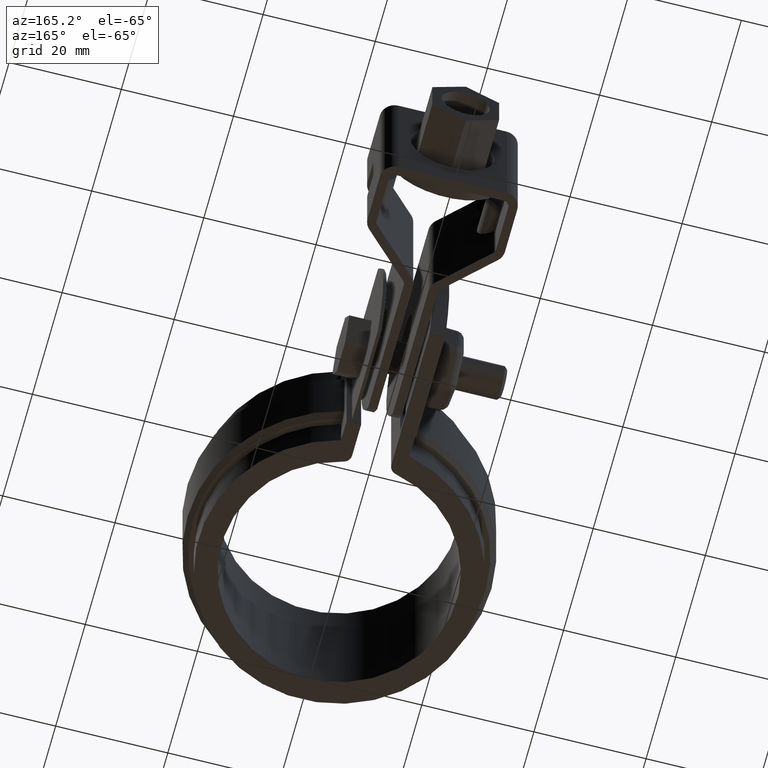
[diagram: clean part render]
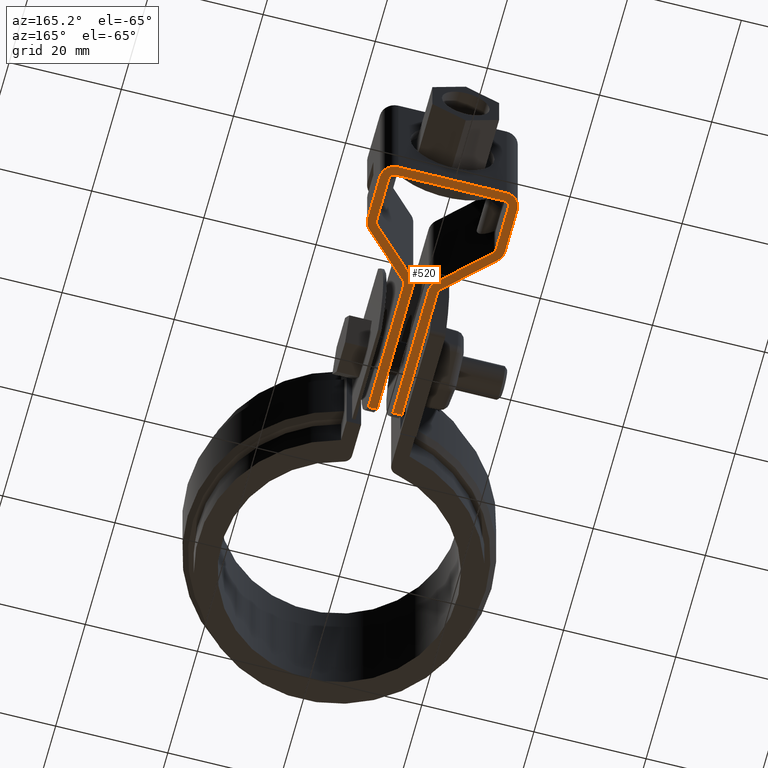
[diagram: same view with one face highlighted and labeled with its STEP entity id]
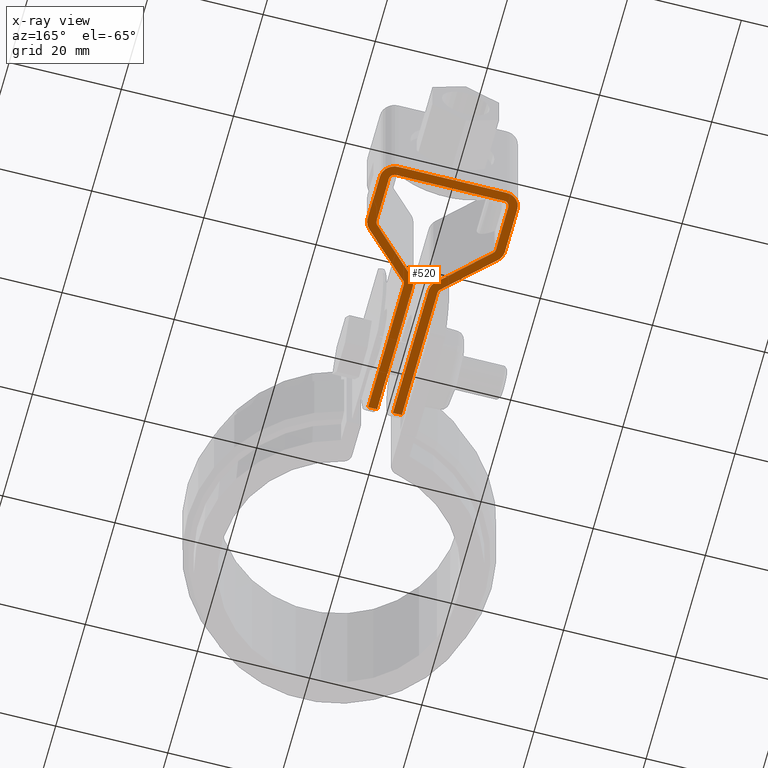
[diagram: x-ray of the same camera — body ghosted, the highlighted face saturated]
A machine part, auxiliary view. The second image highlights one B-rep face of the part: STEP entity #520.
The next image is the same camera in x-ray: the body ghosted, the highlighted face saturated — about 0% of this face is hidden behind the body in this view.
In plain terms, the highlighted planar face has unit normal (0, 0, -1).
Its self-contained STEP definition (entity closure, byte-faithful):
#520 = ADVANCED_FACE( '', ( #1024 ), #1025, .T. );
#1024 = FACE_OUTER_BOUND( '', #2117, .T. );
#1025 = PLANE( '', #2118 );
#2117 = EDGE_LOOP( '', ( #4677, #4678, #4679, #4680, #4681, #4682, #4683, #4684, #4685, #4686, #4687, #4688, #4689, #4690, #4691, #4692, #4693, #4694, #4695, #4696, #4697, #4698, #4699, #4700, #4701, #4702, #4703, #4704 ) );
#2118 = AXIS2_PLACEMENT_3D( '', #4705, #4706, #4707 );
#4677 = ORIENTED_EDGE( '', *, *, #6585, .T. );
#4678 = ORIENTED_EDGE( '', *, *, #6550, .T. );
#4679 = ORIENTED_EDGE( '', *, *, #6559, .F. );
#4680 = ORIENTED_EDGE( '', *, *, #6553, .F. );
#4681 = ORIENTED_EDGE( '', *, *, #6558, .F. );
#4682 = ORIENTED_EDGE( '', *, *, #6547, .T. );
#4683 = ORIENTED_EDGE( '', *, *, #6594, .T. );
#4684 = ORIENTED_EDGE( '', *, *, #6595, .T. );
#4685 = ORIENTED_EDGE( '', *, *, #6596, .T. );
#4686 = ORIENTED_EDGE( '', *, *, #6502, .T. );
#4687 = ORIENTED_EDGE( '', *, *, #6593, .T. );
#4688 = ORIENTED_EDGE( '', *, *, #6545, .F. );
#4689 = ORIENTED_EDGE( '', *, *, #6532, .F. );
#4690 = ORIENTED_EDGE( '', *, *, #6597, .F. );
#4691 = ORIENTED_EDGE( '', *, *, #6598, .F. );
#4692 = ORIENTED_EDGE( '', *, *, #6599, .F. );
#4693 = ORIENTED_EDGE( '', *, *, #6509, .T. );
#4694 = ORIENTED_EDGE( '', *, *, #6505, .T. );
#4695 = ORIENTED_EDGE( '', *, *, #6600, .T. );
#4696 = ORIENTED_EDGE( '', *, *, #6601, .F. );
#4697 = ORIENTED_EDGE( '', *, *, #6538, .F. );
#4698 = ORIENTED_EDGE( '', *, *, #6535, .F. );
#4699 = ORIENTED_EDGE( '', *, *, #6542, .F. );
#4700 = ORIENTED_EDGE( '', *, *, #6543, .F. );
#4701 = ORIENTED_EDGE( '', *, *, #6592, .T. );
#4702 = ORIENTED_EDGE( '', *, *, #6590, .T. );
#4703 = ORIENTED_EDGE( '', *, *, #6587, .T. );
#4704 = ORIENTED_EDGE( '', *, *, #6583, .T. );
#4705 = CARTESIAN_POINT( '', ( -9.64999999999950, 73.8025110200059, -25.0000000000244 ) );
#4706 = DIRECTION( '', ( 5.79906149265214E-015, 1.26121335597421E-013, -1.00000000000000 ) );
#4707 = DIRECTION( '', ( -9.21184560650170E-016, 1.00000000000000, 1.26121335597421E-013 ) );
#6502 = EDGE_CURVE( '', #7689, #7690, #7691, .T. );
#6505 = EDGE_CURVE( '', #7694, #7695, #7696, .T. );
#6509 = EDGE_CURVE( '', #7701, #7694, #7702, .T. );
#6532 = EDGE_CURVE( '', #7738, #7740, #7741, .T. );
#6535 = EDGE_CURVE( '', #7743, #7745, #7746, .T. );
#6538 = EDGE_CURVE( '', #7745, #7749, #7750, .T. );
#6542 = EDGE_CURVE( '', #7753, #7743, #7755, .T. );
#6543 = EDGE_CURVE( '', #7756, #7753, #7757, .T. );
#6545 = EDGE_CURVE( '', #7740, #7759, #7760, .T. );
#6547 = EDGE_CURVE( '', #7762, #7763, #7764, .F. );
#6550 = EDGE_CURVE( '', #7767, #7768, #7769, .T. );
#6553 = EDGE_CURVE( '', #7772, #7773, #7774, .T. );
#6558 = EDGE_CURVE( '', #7762, #7772, #7781, .T. );
#6559 = EDGE_CURVE( '', #7773, #7768, #7782, .T. );
#6583 = EDGE_CURVE( '', #7823, #7821, #7824, .T. );
#6585 = EDGE_CURVE( '', #7821, #7767, #7826, .T. );
#6587 = EDGE_CURVE( '', #7828, #7823, #7829, .T. );
#6590 = EDGE_CURVE( '', #7832, #7828, #7833, .T. );
#6592 = EDGE_CURVE( '', #7756, #7832, #7835, .T. );
#6593 = EDGE_CURVE( '', #7690, #7759, #7836, .T. );
#6594 = EDGE_CURVE( '', #7763, #7837, #7838, .T. );
#6595 = EDGE_CURVE( '', #7837, #7839, #7840, .T. );
#6596 = EDGE_CURVE( '', #7839, #7689, #7841, .T. );
#6597 = EDGE_CURVE( '', #7842, #7738, #7843, .T. );
#6598 = EDGE_CURVE( '', #7844, #7842, #7845, .T. );
#6599 = EDGE_CURVE( '', #7701, #7844, #7846, .F. );
#6600 = EDGE_CURVE( '', #7695, #7847, #7848, .T. );
#6601 = EDGE_CURVE( '', #7749, #7847, #7849, .T. );
#7689 = VERTEX_POINT( '', #11045 );
#7690 = VERTEX_POINT( '', #11046 );
#7691 = CIRCLE( '', #11047, 2.59999999999999 );
#7694 = VERTEX_POINT( '', #11052 );
#7695 = VERTEX_POINT( '', #11053 );
#7696 = LINE( '', #11054, #11055 );
#7701 = VERTEX_POINT( '', #11060 );
#7702 = LINE( '', #11061, #11062 );
#7738 = VERTEX_POINT( '', #11135 );
#7740 = VERTEX_POINT( '', #11138 );
#7741 = LINE( '', #11139, #11140 );
#7743 = VERTEX_POINT( '', #11143 );
#7745 = VERTEX_POINT( '', #11146 );
#7746 = CIRCLE( '', #11147, 0.999999999999999 );
#7749 = VERTEX_POINT( '', #11152 );
#7750 = LINE( '', #11153, #11154 );
#7753 = VERTEX_POINT( '', #11159 );
#7755 = LINE( '', #11162, #11163 );
#7756 = VERTEX_POINT( '', #11164 );
#7757 = CIRCLE( '', #11165, 1.00000000000000 );
#7759 = VERTEX_POINT( '', #11168 );
#7760 = CIRCLE( '', #11169, 2.59999999999999 );
#7762 = VERTEX_POINT( '', #11172 );
#7763 = VERTEX_POINT( '', #11173 );
#7764 = CIRCLE( '', #11174, 1.00000000000000 );
#7767 = VERTEX_POINT( '', #11179 );
#7768 = VERTEX_POINT( '', #11180 );
#7769 = CIRCLE( '', #11181, 2.60000000000000 );
#7772 = VERTEX_POINT( '', #11186 );
#7773 = VERTEX_POINT( '', #11187 );
#7774 = LINE( '', #11188, #11189 );
#7781 = LINE( '', #11196, #11197 );
#7782 = LINE( '', #11198, #11199 );
#7821 = VERTEX_POINT( '', #11274 );
#7823 = VERTEX_POINT( '', #11277 );
#7824 = CIRCLE( '', #11278, 1.00000000000000 );
#7826 = LINE( '', #11281, #11282 );
#7828 = VERTEX_POINT( '', #11285 );
#7829 = LINE( '', #11286, #11287 );
#7832 = VERTEX_POINT( '', #11292 );
#7833 = CIRCLE( '', #11293, 1.00000000000000 );
#7835 = LINE( '', #11296, #11297 );
#7836 = LINE( '', #11298, #11299 );
#7837 = VERTEX_POINT( '', #11300 );
#7838 = LINE( '', #11301, #11302 );
#7839 = VERTEX_POINT( '', #11303 );
#7840 = CIRCLE( '', #11304, 2.59999999999999 );
#7841 = LINE( '', #11305, #11306 );
#7842 = VERTEX_POINT( '', #11307 );
#7843 = CIRCLE( '', #11308, 2.59999999999999 );
#7844 = VERTEX_POINT( '', #11309 );
#7845 = LINE( '', #11310, #11311 );
#7846 = CIRCLE( '', #11312, 0.999999999999998 );
#7847 = VERTEX_POINT( '', #11313 );
#7848 = LINE( '', #11314, #11315 );
#7849 = CIRCLE( '', #11316, 2.59999999999999 );
#11045 = CARTESIAN_POINT( '', ( -12.2499999999995, 73.8025110200059, -25.0000000000245 ) );
#11046 = CARTESIAN_POINT( '', ( -9.64999999999951, 76.4025110200058, -25.0000000000241 ) );
#11047 = AXIS2_PLACEMENT_3D( '', #12927, #12928, #12929 );
#11052 = CARTESIAN_POINT( '', ( 3.00000000000053, 30.9025110530944, -25.0000000000297 ) );
#11053 = CARTESIAN_POINT( '', ( 1.40000000000054, 30.9025110530944, -25.0000000000298 ) );
#11054 = CARTESIAN_POINT( '', ( 38.4737108565964, 30.9025110579858, -25.0000000059428 ) );
#11055 = VECTOR( '', #12932, 999.999999999998 );
#11060 = CARTESIAN_POINT( '', ( 3.00000000000051, 54.9566574245265, -25.0000000000267 ) );
#11061 = CARTESIAN_POINT( '', ( 3.00000000000051, 55.3781211934166, -25.0000000000267 ) );
#11062 = VECTOR( '', #12942, 1000.00000000000 );
#11135 = CARTESIAN_POINT( '', ( 12.2500000000005, 65.4983168191203, -25.0000000000253 ) );
#11138 = CARTESIAN_POINT( '', ( 12.2500000000005, 73.8025110200062, -25.0000000000243 ) );
#11139 = CARTESIAN_POINT( '', ( 12.2500000000005, 65.4983168191203, -25.0000000000253 ) );
#11140 = VECTOR( '', #12973, 1000.00000000000 );
#11143 = CARTESIAN_POINT( '', ( 10.6500000000005, 65.4983167888962, -25.0000000000253 ) );
#11146 = CARTESIAN_POINT( '', ( 10.3483238355310, 64.7825348243777, -25.0000000000254 ) );
#11147 = AXIS2_PLACEMENT_3D( '', #12976, #12977, #12978 );
#11152 = CARTESIAN_POINT( '', ( 2.18435802762122, 56.8176905020505, -25.0000000000265 ) );
#11153 = CARTESIAN_POINT( '', ( 10.3483238355310, 64.7825348243777, -25.0000000000254 ) );
#11154 = VECTOR( '', #12981, 1000.00000000000 );
#11159 = CARTESIAN_POINT( '', ( 10.6500000000005, 73.8025110200062, -25.0000000000243 ) );
#11162 = CARTESIAN_POINT( '', ( 10.6500000000005, 73.8025110200062, -25.0000000000243 ) );
#11163 = VECTOR( '', #12985, 1000.00000000000 );
#11164 = CARTESIAN_POINT( '', ( 9.65000000000049, 74.8025110200062, -25.0000000000242 ) );
#11165 = AXIS2_PLACEMENT_3D( '', #12986, #12987, #12988 );
#11168 = CARTESIAN_POINT( '', ( 9.65000000000049, 76.4025110200062, -25.0000000000240 ) );
#11169 = AXIS2_PLACEMENT_3D( '', #12990, #12991, #12992 );
#11172 = CARTESIAN_POINT( '', ( -2.99999999999948, 54.9566574245262, -25.0000000000268 ) );
#11173 = CARTESIAN_POINT( '', ( -3.30167616446897, 55.6724393890447, -25.0000000000267 ) );
#11174 = AXIS2_PLACEMENT_3D( '', #12994, #12995, #12996 );
#11179 = CARTESIAN_POINT( '', ( -2.18435802762019, 56.8176905020502, -25.0000000000266 ) );
#11180 = CARTESIAN_POINT( '', ( -1.39999999999948, 54.9566573943021, -25.0000000000268 ) );
#11181 = AXIS2_PLACEMENT_3D( '', #12999, #13000, #13001 );
#11186 = CARTESIAN_POINT( '', ( -2.99999999999945, 30.9025110530941, -25.0000000000298 ) );
#11187 = CARTESIAN_POINT( '', ( -1.39999999999946, 30.9025110530941, -25.0000000000298 ) );
#11188 = CARTESIAN_POINT( '', ( -38.4737108565954, 30.9025110579855, -25.0000000059433 ) );
#11189 = VECTOR( '', #13004, 1000.00000000000 );
#11196 = CARTESIAN_POINT( '', ( -2.99999999999948, 55.3781211934163, -25.0000000000267 ) );
#11197 = VECTOR( '', #13017, 1000.00000000000 );
#11198 = CARTESIAN_POINT( '', ( -1.39999999999945, 26.4025110200060, -25.0000000000304 ) );
#11199 = VECTOR( '', #13018, 1000.00000000000 );
#11274 = CARTESIAN_POINT( '', ( -10.3483238355300, 64.7825348243774, -25.0000000000256 ) );
#11277 = CARTESIAN_POINT( '', ( -10.6499999999995, 65.4983167888959, -25.0000000000255 ) );
#11278 = AXIS2_PLACEMENT_3D( '', #13054, #13055, #13056 );
#11281 = CARTESIAN_POINT( '', ( -10.3483238355300, 64.7825348243774, -25.0000000000256 ) );
#11282 = VECTOR( '', #13058, 1000.00000000000 );
#11285 = CARTESIAN_POINT( '', ( -10.6499999999995, 73.8025110200059, -25.0000000000245 ) );
#11286 = CARTESIAN_POINT( '', ( -10.6499999999995, 73.8025110200059, -25.0000000000245 ) );
#11287 = VECTOR( '', #13060, 1000.00000000000 );
#11292 = CARTESIAN_POINT( '', ( -9.64999999999950, 74.8025110200059, -25.0000000000243 ) );
#11293 = AXIS2_PLACEMENT_3D( '', #13063, #13064, #13065 );
#11296 = CARTESIAN_POINT( '', ( 9.65000000000051, 74.8025110200059, -25.0000000000242 ) );
#11297 = VECTOR( '', #13067, 1000.00000000000 );
#11298 = CARTESIAN_POINT( '', ( -9.64999999999951, 76.4025110200058, -25.0000000000241 ) );
#11299 = VECTOR( '', #13068, 1000.00000000000 );
#11300 = CARTESIAN_POINT( '', ( -11.4656419723788, 63.6372837113719, -25.0000000000257 ) );
#11301 = CARTESIAN_POINT( '', ( -3.90167616446898, 56.2578052156343, -25.0000000000266 ) );
#11302 = VECTOR( '', #13069, 1000.00000000000 );
#11303 = CARTESIAN_POINT( '', ( -12.2499999999995, 65.4983168191200, -25.0000000000255 ) );
#11304 = AXIS2_PLACEMENT_3D( '', #13070, #13071, #13072 );
#11305 = CARTESIAN_POINT( '', ( -12.2499999999995, 65.4983168191200, -25.0000000000255 ) );
#11306 = VECTOR( '', #13073, 1000.00000000000 );
#11307 = CARTESIAN_POINT( '', ( 11.4656419723798, 63.6372837113722, -25.0000000000256 ) );
#11308 = AXIS2_PLACEMENT_3D( '', #13074, #13075, #13076 );
#11309 = CARTESIAN_POINT( '', ( 3.30167616447000, 55.6724393890450, -25.0000000000266 ) );
#11310 = CARTESIAN_POINT( '', ( 3.90167616447001, 56.2578052156346, -25.0000000000265 ) );
#11311 = VECTOR( '', #13077, 1000.00000000000 );
#11312 = AXIS2_PLACEMENT_3D( '', #13078, #13079, #13080 );
#11313 = CARTESIAN_POINT( '', ( 1.40000000000052, 54.9566573943024, -25.0000000000267 ) );
#11314 = CARTESIAN_POINT( '', ( 1.40000000000054, 26.4025110200062, -25.0000000000303 ) );
#11315 = VECTOR( '', #13081, 1000.00000000000 );
#11316 = AXIS2_PLACEMENT_3D( '', #13082, #13083, #13084 );
#12927 = CARTESIAN_POINT( '', ( -9.64999999999950, 73.8025110200059, -25.0000000000244 ) );
#12928 = DIRECTION( '', ( 5.79906149265214E-015, 1.26121335597421E-013, -1.00000000000000 ) );
#12929 = DIRECTION( '', ( -1.00000000000000, -9.21184560649439E-016, -5.79906149265226E-015 ) );
#12932 = DIRECTION( '', ( -1.00000000000000, -7.98723925267201E-016, -5.79906149265224E-015 ) );
#12942 = DIRECTION( '', ( 6.87701622805418E-016, -1.00000000000000, -1.26121335597421E-013 ) );
#12973 = DIRECTION( '', ( -7.98723925267933E-016, 1.00000000000000, 1.26121335597421E-013 ) );
#12976 = CARTESIAN_POINT( '', ( 9.65000000000049, 65.4983167888962, -25.0000000000253 ) );
#12977 = DIRECTION( '', ( 5.79906149265214E-015, 1.26121335597421E-013, -1.00000000000000 ) );
#12978 = DIRECTION( '', ( 1.00000000000000, 7.98723925267201E-016, 5.79906149265224E-015 ) );
#12981 = DIRECTION( '', ( -0.715781964518503, -0.698323835530503, -9.22243984441952E-014 ) );
#12985 = DIRECTION( '', ( 7.98723925267933E-016, -1.00000000000000, -1.26121335597421E-013 ) );
#12986 = CARTESIAN_POINT( '', ( 9.65000000000049, 73.8025110200062, -25.0000000000243 ) );
#12987 = DIRECTION( '', ( 5.79906149265214E-015, 1.26121335597421E-013, -1.00000000000000 ) );
#12988 = DIRECTION( '', ( -7.98723925267933E-016, 1.00000000000000, 1.26121335597421E-013 ) );
#12990 = CARTESIAN_POINT( '', ( 9.65000000000049, 73.8025110200062, -25.0000000000243 ) );
#12991 = DIRECTION( '', ( -5.79906149265214E-015, -1.26121335597421E-013, 1.00000000000000 ) );
#12992 = DIRECTION( '', ( 1.00000000000000, 7.98723925267201E-016, 5.79906149265224E-015 ) );
#12994 = CARTESIAN_POINT( '', ( -3.99999999999948, 54.9566574245262, -25.0000000000268 ) );
#12995 = DIRECTION( '', ( 5.79906149265214E-015, 1.26121335597421E-013, -1.00000000000000 ) );
#12996 = DIRECTION( '', ( -1.00000000000000, -9.21184560649439E-016, -5.79906149265226E-015 ) );
#12999 = CARTESIAN_POINT( '', ( -3.99999999999948, 54.9566573943021, -25.0000000000268 ) );
#13000 = DIRECTION( '', ( 5.79906149265214E-015, 1.26121335597421E-013, -1.00000000000000 ) );
#13001 = DIRECTION( '', ( -1.00000000000000, -9.21184560649439E-016, -5.79906149265226E-015 ) );
#13004 = DIRECTION( '', ( 1.00000000000000, 9.21184560649439E-016, 5.79906149265226E-015 ) );
#13017 = DIRECTION( '', ( 1.03220686311269E-015, -1.00000000000000, -1.26121335597421E-013 ) );
#13018 = DIRECTION( '', ( -1.03220686311269E-015, 1.00000000000000, 1.26121335597421E-013 ) );
#13054 = CARTESIAN_POINT( '', ( -9.64999999999950, 65.4983167888959, -25.0000000000255 ) );
#13055 = DIRECTION( '', ( -5.79906149265214E-015, -1.26121335597421E-013, 1.00000000000000 ) );
#13056 = DIRECTION( '', ( -1.00000000000000, -9.21184560649439E-016, -5.79906149265226E-015 ) );
#13058 = DIRECTION( '', ( 0.715781964518506, -0.698323835530500, -8.39226711890465E-014 ) );
#13060 = DIRECTION( '', ( 9.21184560650170E-016, -1.00000000000000, -1.26121335597421E-013 ) );
#13063 = CARTESIAN_POINT( '', ( -9.64999999999950, 73.8025110200059, -25.0000000000244 ) );
#13064 = DIRECTION( '', ( -5.79906149265214E-015, -1.26121335597421E-013, 1.00000000000000 ) );
#13065 = DIRECTION( '', ( -9.21184560650170E-016, 1.00000000000000, 1.26121335597421E-013 ) );
#13067 = DIRECTION( '', ( -1.00000000000000, -9.21184560649439E-016, -5.79906149265226E-015 ) );
#13068 = DIRECTION( '', ( 1.00000000000000, 9.21184560649439E-016, 5.79906149265226E-015 ) );
#13069 = DIRECTION( '', ( -0.715781964518506, 0.698323835530500, 8.39226711890465E-014 ) );
#13070 = CARTESIAN_POINT( '', ( -9.64999999999950, 65.4983168191200, -25.0000000000255 ) );
#13071 = DIRECTION( '', ( 5.79906149265215E-015, 1.26121335597421E-013, -1.00000000000000 ) );
#13072 = DIRECTION( '', ( -0.698323835530501, -0.715781964518505, -9.43250002256460E-014 ) );
#13073 = DIRECTION( '', ( -9.21184560650170E-016, 1.00000000000000, 1.26121335597421E-013 ) );
#13074 = CARTESIAN_POINT( '', ( 9.65000000000049, 65.4983168191203, -25.0000000000253 ) );
#13075 = DIRECTION( '', ( -5.79906149265214E-015, -1.26121335597421E-013, 1.00000000000000 ) );
#13076 = DIRECTION( '', ( 0.698323835530501, -0.715781964518505, -8.62257544975938E-014 ) );
#13077 = DIRECTION( '', ( 0.715781964518503, 0.698323835530503, 9.22243984441952E-014 ) );
#13078 = CARTESIAN_POINT( '', ( 4.00000000000051, 54.9566574245265, -25.0000000000267 ) );
#13079 = DIRECTION( '', ( -5.79906149265214E-015, -1.26121335597421E-013, 1.00000000000000 ) );
#13080 = DIRECTION( '', ( 1.00000000000000, 7.98723925267201E-016, 5.79906149265224E-015 ) );
#13081 = DIRECTION( '', ( -6.87701622805418E-016, 1.00000000000000, 1.26121335597421E-013 ) );
#13082 = CARTESIAN_POINT( '', ( 4.00000000000050, 54.9566573943024, -25.0000000000267 ) );
#13083 = DIRECTION( '', ( -5.79906149265214E-015, -1.26121335597421E-013, 1.00000000000000 ) );
#13084 = DIRECTION( '', ( 1.00000000000000, 7.98723925267201E-016, 5.79906149265224E-015 ) );